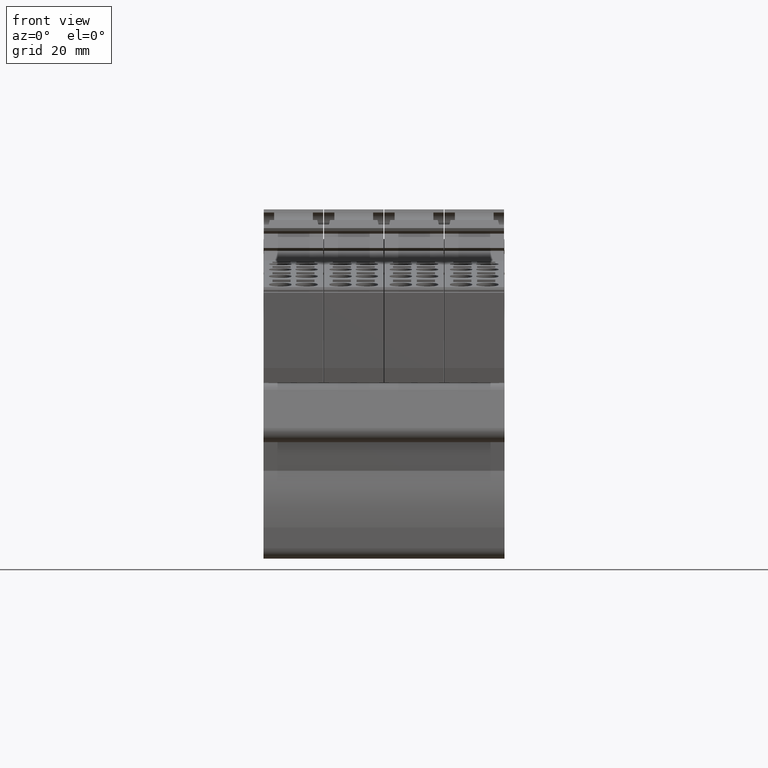
[diagram: clean part render]
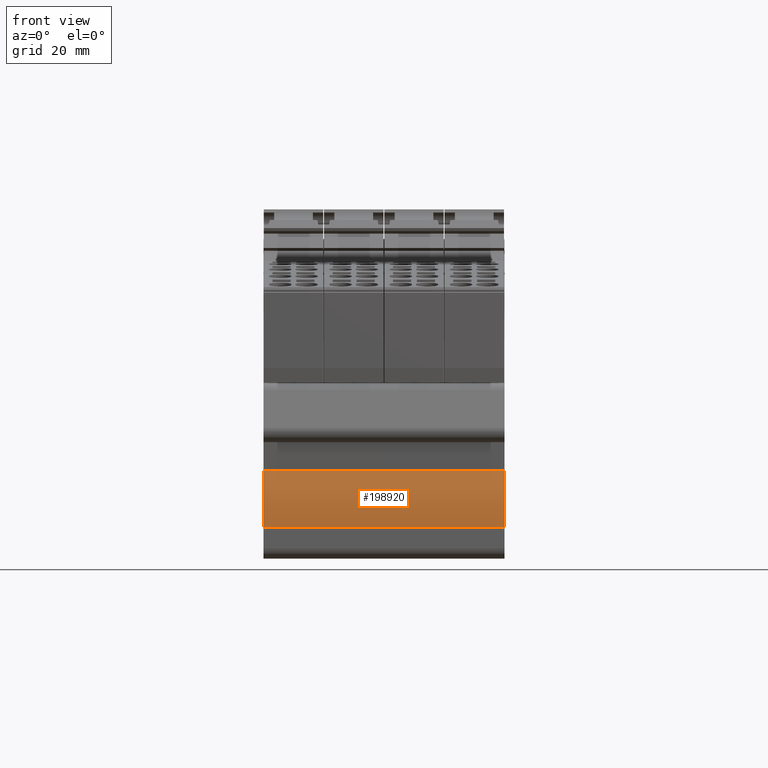
[diagram: same view with one face highlighted and labeled with its STEP entity id]
A machine part, front view. The second image highlights one B-rep face of the part: STEP entity #198920.
In plain terms, the highlighted cylindrical surface (partial cylindrical patch) has radius 30 mm, axis along (1, 0, 0).
Its self-contained STEP definition (entity closure, byte-faithful):
#177010=CARTESIAN_POINT('',(176.802689507967,-56.6770591260167,36.45));
#177020=VERTEX_POINT('',#177010);
#177050=CARTESIAN_POINT('',(206.774136155416,-57.9856407469761,36.45));
#177060=DIRECTION('',(0.,0.,1.));
#177070=DIRECTION('',(1.,-1.05193631583234E-14,0.));
#177080=AXIS2_PLACEMENT_3D('',#177050,#177060,#177070);
#177090=CIRCLE('',#177080,29.9999999999933);
#177100=CARTESIAN_POINT('',(179.617847465003,-45.2366806104568,36.45));
#177110=VERTEX_POINT('',#177100);
#177120=EDGE_CURVE('',#177110,#177020,#177090,.T.);
#181230=CARTESIAN_POINT('',(179.617847465003,-45.2366806104568,-12.15));
#181240=VERTEX_POINT('',#181230);
#181270=CARTESIAN_POINT('',(206.774136155416,-57.9856407469761,-12.15));
#181280=DIRECTION('',(0.,0.,1.));
#181290=DIRECTION('',(1.,-1.05193631583234E-14,0.));
#181300=AXIS2_PLACEMENT_3D('',#181270,#181280,#181290);
#181310=CIRCLE('',#181300,29.9999999999933);
#181320=CARTESIAN_POINT('',(176.802689507967,-56.6770591260167,-12.15));
#181330=VERTEX_POINT('',#181320);
#181340=EDGE_CURVE('',#181240,#181330,#181310,.T.);
#193080=CARTESIAN_POINT('',(179.617847465003,-45.2366806104568,
6.14999999999999));
#193090=DIRECTION('',(0.,0.,1.));
#193100=VECTOR('',#193090,1.);
#193110=LINE('',#193080,#193100);
#193120=EDGE_CURVE('',#181240,#177110,#193110,.T.);
#198760=CARTESIAN_POINT('',(206.774136155416,-57.9856407469761,
6.14999999999999));
#198770=DIRECTION('',(0.,0.,1.));
#198780=DIRECTION('',(1.,-1.05193631583234E-14,0.));
#198790=AXIS2_PLACEMENT_3D('',#198760,#198770,#198780);
#198800=CYLINDRICAL_SURFACE('',#198790,29.9999999999933);
#198810=ORIENTED_EDGE('',*,*,#181340,.T.);
#198820=ORIENTED_EDGE('',*,*,#193120,.F.);
#198830=ORIENTED_EDGE('',*,*,#177120,.F.);
#198840=CARTESIAN_POINT('',(176.802689507967,-56.6770591260167,
6.14999999999999));
#198850=DIRECTION('',(0.,0.,1.));
#198860=VECTOR('',#198850,1.);
#198870=LINE('',#198840,#198860);
#198880=EDGE_CURVE('',#181330,#177020,#198870,.T.);
#198890=ORIENTED_EDGE('',*,*,#198880,.T.);
#198900=EDGE_LOOP('',(#198890,#198830,#198820,#198810));
#198910=FACE_OUTER_BOUND('',#198900,.T.);
#198920=ADVANCED_FACE('',(#198910),#198800,.T.);